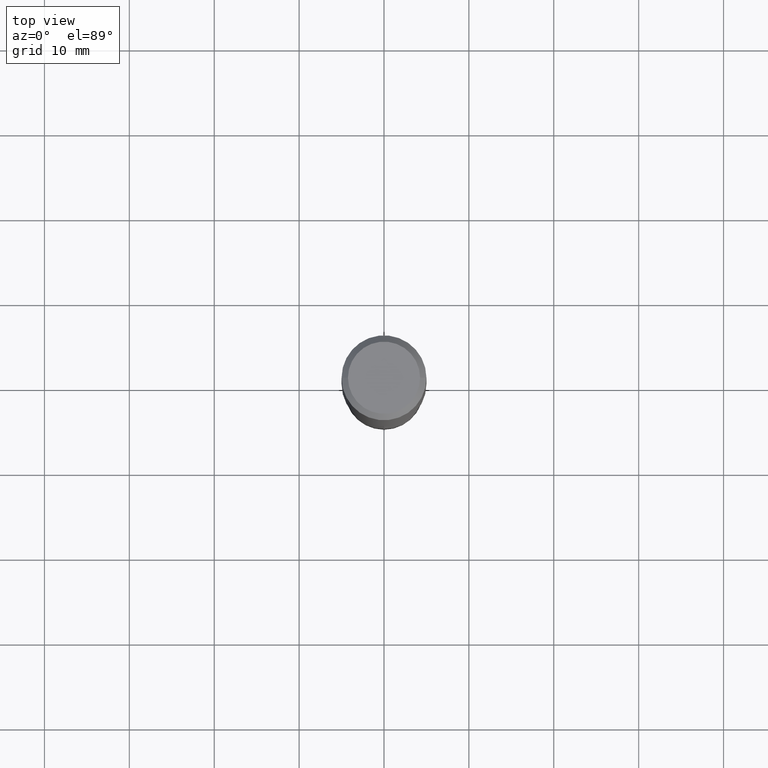
[diagram: clean part render]
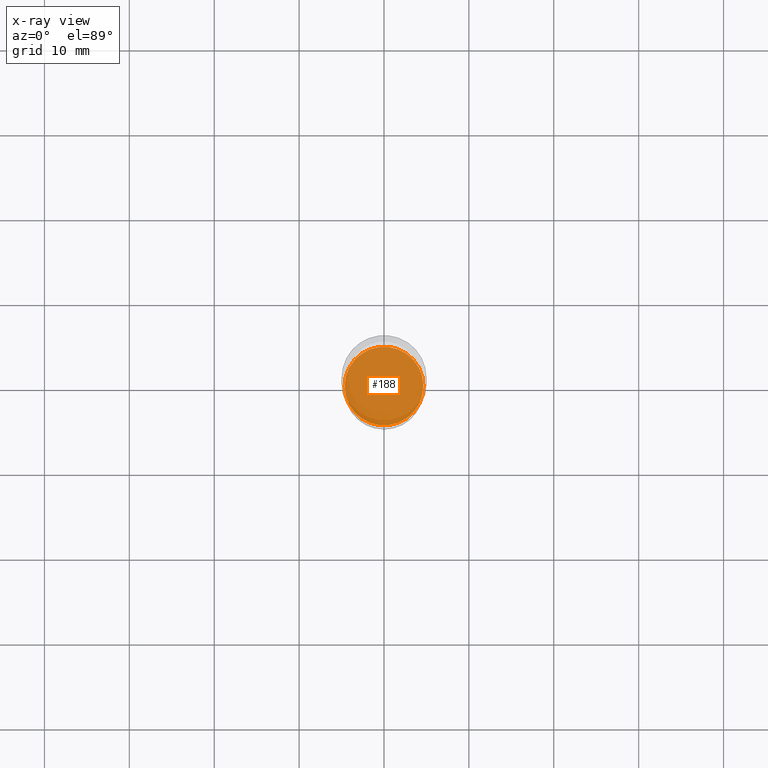
[diagram: x-ray — body ghosted, one internal face saturated and labeled with its STEP entity id]
A machine part, top view, then the same camera in x-ray: the body is ghosted and one INTERNAL B-rep face — a face not visible from any outside direction — is saturated and labeled: STEP entity #188.
In plain terms, the highlighted planar face has unit normal (-0, 0, 1).
Its self-contained STEP definition (entity closure, byte-faithful):
#51 = FACE_OUTER_BOUND ( 'NONE', #355, .T. ) ;
#65 = DIRECTION ( 'NONE',  ( -2.445468806185136597E-29, 3.491481338843145583E-15, 1.000000000000000000 ) ) ;
#70 = ORIENTED_EDGE ( 'NONE', *, *, #171, .F. ) ;
#125 = VERTEX_POINT ( 'NONE', #151 ) ;
#151 = CARTESIAN_POINT ( 'NONE',  ( 0.1825499999999999623, -9.111369701845066414E-15, -2.244499999999999940 ) ) ;
#165 = DIRECTION ( 'NONE',  ( -2.445468806185136597E-29, 3.491481338843145583E-15, 1.000000000000000000 ) ) ;
#171 = EDGE_CURVE ( 'NONE', #414, #125, #412, .T. ) ;
#175 = ORIENTED_EDGE ( 'NONE', *, *, #459, .F. ) ;
#185 = DIRECTION ( 'NONE',  ( 1.000000000000000000, -6.982962677686264344E-15, 0.000000000000000000 ) ) ;
#188 = ADVANCED_FACE ( 'NONE', ( #51 ), #200, .F. ) ;
#200 = PLANE ( 'NONE',  #338 ) ;
#205 = CARTESIAN_POINT ( 'NONE',  ( 5.488854735482538769E-29, -7.836629865033439543E-15, -2.244499999999999940 ) ) ;
#237 = AXIS2_PLACEMENT_3D ( 'NONE', #421, #65, #185 ) ;
#247 = CARTESIAN_POINT ( 'NONE',  ( -0.1825499999999999623, -6.536884873729265523E-15, -2.244499999999999940 ) ) ;
#286 = CARTESIAN_POINT ( 'NONE',  ( 5.488854735482538769E-29, -7.836629865033439543E-15, -2.244499999999999940 ) ) ;
#317 = DIRECTION ( 'NONE',  ( -2.438088387897960049E-29, 3.491481338843145188E-15, 1.000000000000000000 ) ) ;
#338 = AXIS2_PLACEMENT_3D ( 'NONE', #286, #317, #439 ) ;
#355 = EDGE_LOOP ( 'NONE', ( #175, #70 ) ) ;
#372 = AXIS2_PLACEMENT_3D ( 'NONE', #205, #165, #419 ) ;
#412 = CIRCLE ( 'NONE', #372, 0.1825499999999999623 ) ;
#414 = VERTEX_POINT ( 'NONE', #247 ) ;
#419 = DIRECTION ( 'NONE',  ( 1.000000000000000000, -6.982962677686264344E-15, 0.000000000000000000 ) ) ;
#421 = CARTESIAN_POINT ( 'NONE',  ( 5.488854735482538769E-29, -7.836629865033439543E-15, -2.244499999999999940 ) ) ;
#439 = DIRECTION ( 'NONE',  ( 1.000000000000000000, -6.982962677686265922E-15, 4.876176775795935793E-29 ) ) ;
#443 = CIRCLE ( 'NONE', #237, 0.1825499999999999623 ) ;
#459 = EDGE_CURVE ( 'NONE', #125, #414, #443, .T. ) ;